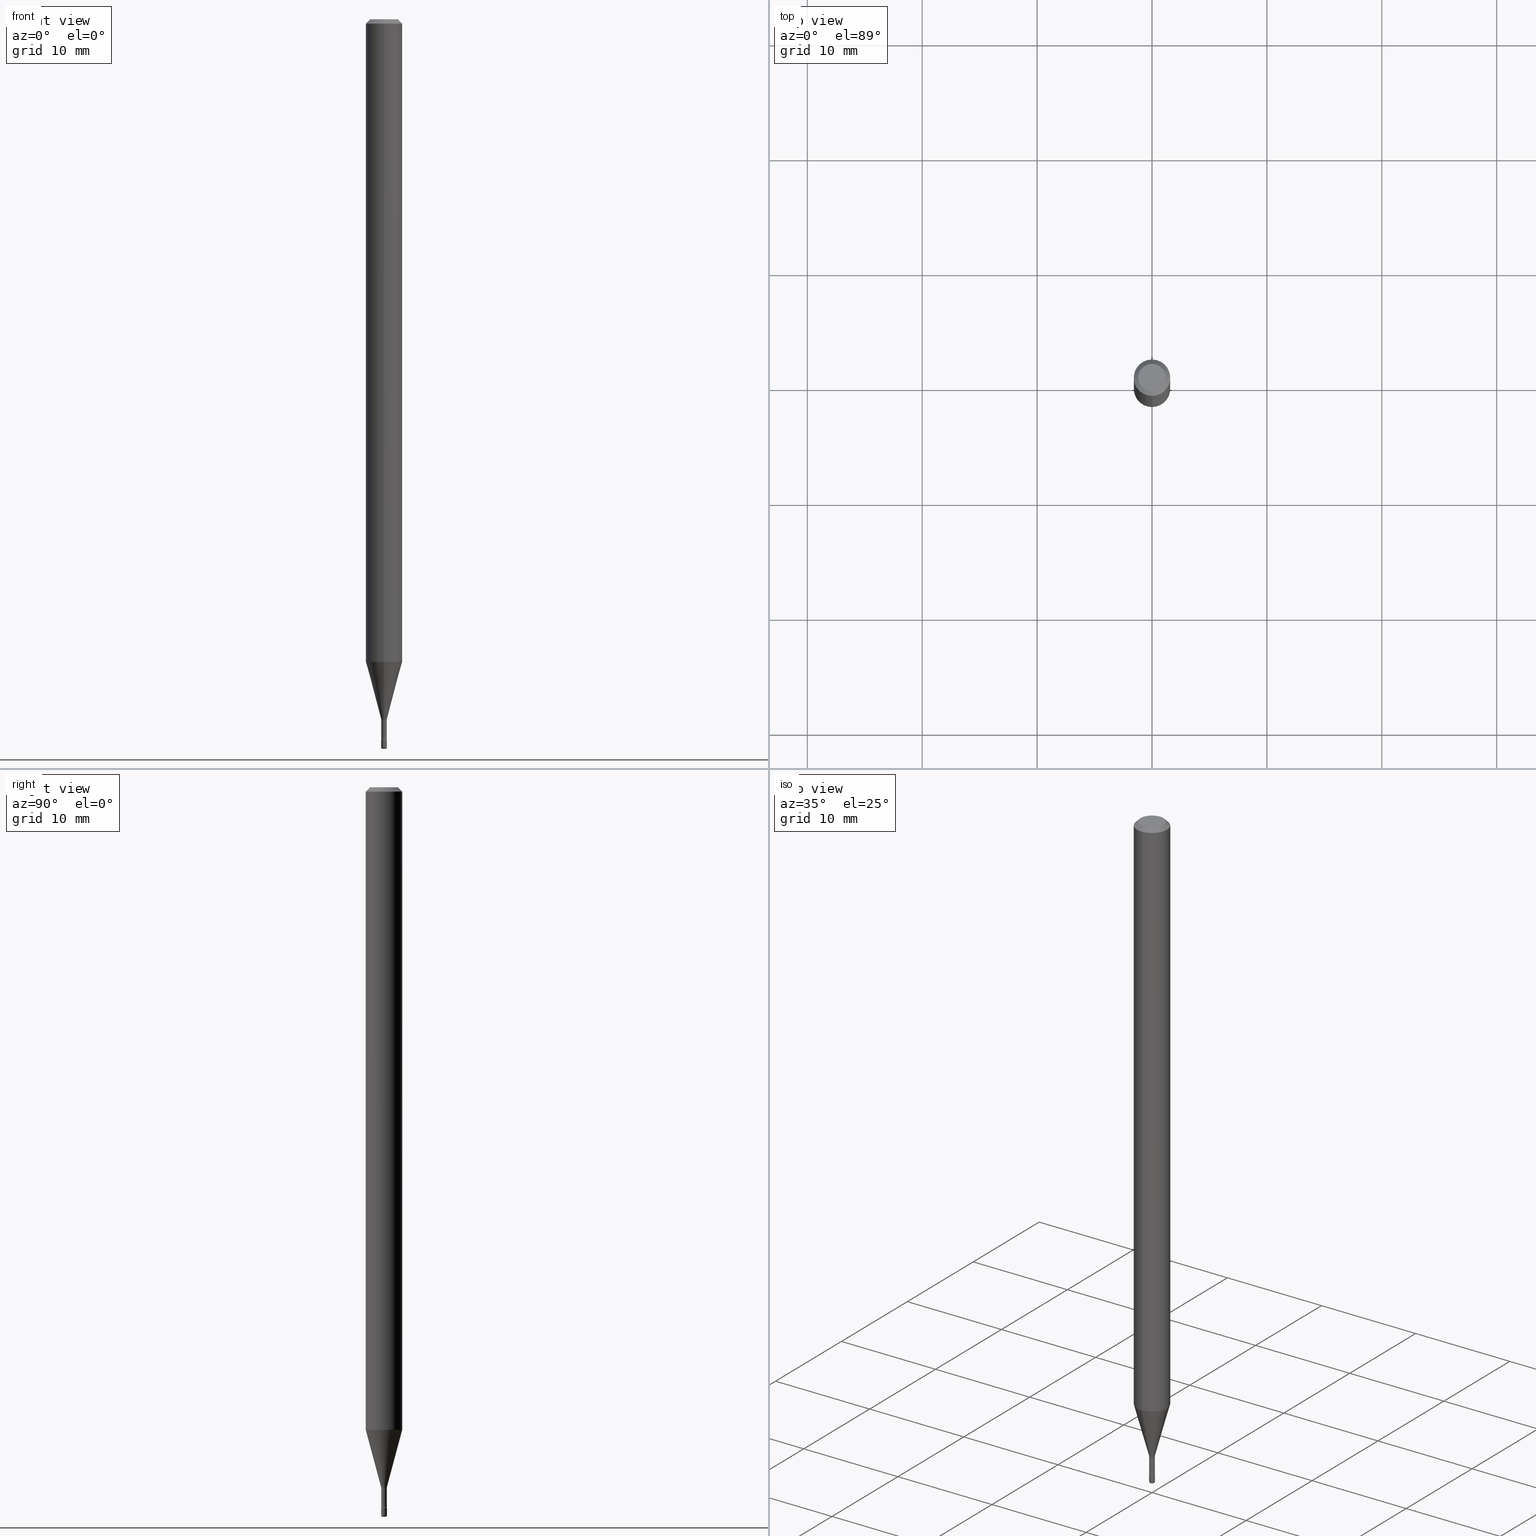
[diagram: canonical four-view strip — front | top / right | iso, engineering-drawing reading convention]
A machine part, canonical four-view strip (front | top / right | iso — engineering-drawing reading convention). The complete STEP part file that produces these views, byte-faithful:
ISO-10303-21;
HEADER;
FILE_DESCRIPTION (( 'STEP AP203' ),
    '1' );
FILE_NAME ('08785.STEP',
    '2024-03-06T20:02:25',
    ( '' ),
    ( '' ),
    'SwSTEP 2.0',
    'SolidWorks 2023',
    '' );
FILE_SCHEMA (( 'CONFIG_CONTROL_DESIGN' ));
ENDSEC;

DATA;
#1 = DIRECTION ( 'NONE',  ( -2.445504678334258331E-29, 3.491429967883887349E-15, 1.000000000000000000 ) ) ;
#2 = ORIENTED_EDGE ( 'NONE', *, *, #109, .T. ) ;
#3 = ADVANCED_FACE ( 'NONE', ( #240 ), #105, .T. ) ;
#4 = AXIS2_PLACEMENT_3D ( 'NONE', #223, #358, #309 ) ;
#5 = CC_DESIGN_SECURITY_CLASSIFICATION ( #517, ( #490 ) ) ;
#6 = DIRECTION ( 'NONE',  ( -1.000000000000000000, 6.982962677686265922E-15, -4.876176775795935793E-29 ) ) ;
#7 = FACE_OUTER_BOUND ( 'NONE', #362, .T. ) ;
#8 = PLANE ( 'NONE',  #281 ) ;
#9 = DIRECTION ( 'NONE',  ( 2.445504678334258331E-29, -3.491429967883887349E-15, -1.000000000000000000 ) ) ;
#10 = DATE_AND_TIME ( #442, #108 ) ;
#11 = CARTESIAN_POINT ( 'NONE',  ( -1.703842893354846620E-16, -0.02440000000000861965, -2.465800000000000214 ) ) ;
#12 = ORIENTED_EDGE ( 'NONE', *, *, #119, .T. ) ;
#13 = APPROVAL_ROLE ( '' ) ;
#14 = VECTOR ( 'NONE', #412, 39.37007874015748143 ) ;
#15 = LOCAL_TIME ( 15, 2, 25.00000000000000000, #235 ) ;
#16 = DIRECTION ( 'NONE',  ( 1.000000000000000000, -6.982962677686235945E-15, 0.000000000000000000 ) ) ;
#17 = EDGE_CURVE ( 'NONE', #246, #140, #280, .T. ) ;
#18 = LINE ( 'NONE', #117, #90 ) ;
#19 = CARTESIAN_POINT ( 'NONE',  ( 6.892264536879008027E-17, 0.009399999999991406549, -2.465800000000000214 ) ) ;
#20 = FACE_OUTER_BOUND ( 'NONE', #426, .T. ) ;
#21 = CARTESIAN_POINT ( 'NONE',  ( 3.840629472727447874E-16, 0.04750000000000000749, -1.929345507921889422E-16 ) ) ;
#22 = DIRECTION ( 'NONE',  ( -6.982962677686265133E-15, -1.000000000000000000, 3.491429967883887349E-15 ) ) ;
#23 = PERSON_AND_ORGANIZATION ( #226, #275 ) ;
#24 = CARTESIAN_POINT ( 'NONE',  ( 0.000000000000000000, 0.000000000000000000, 0.000000000000000000 ) ) ;
#25 = PERSON_AND_ORGANIZATION ( #226, #275 ) ;
#26 = CIRCLE ( 'NONE', #397, 0.01000000000000000021 ) ;
#27 = CIRCLE ( 'NONE', #296, 0.009399999999999998634 ) ;
#28 = CARTESIAN_POINT ( 'NONE',  ( 0.01000000000000002102, -8.781075567190510050E-15, -2.495000000000000107 ) ) ;
#29 = EDGE_LOOP ( 'NONE', ( #408, #533, #344, #569 ) ) ;
#30 = DIRECTION ( 'NONE',  ( -2.445504678334258331E-29, 3.491429967883887349E-15, 1.000000000000000000 ) ) ;
#31 = AXIS2_PLACEMENT_3D ( 'NONE', #446, #141, #395 ) ;
#32 = CC_DESIGN_APPROVAL ( #360, ( #340 ) ) ;
#33 = ORIENTED_EDGE ( 'NONE', *, *, #219, .F. ) ;
#34 = EDGE_CURVE ( 'NONE', #162, #337, #327, .T. ) ;
#35 = DIRECTION ( 'NONE',  ( 1.000000000000000000, -6.982962677686332186E-15, 0.000000000000000000 ) ) ;
#36 = MANIFOLD_SOLID_BREP ( 'Body-Move/Copy2[1]', #538 ) ;
#37 = ORIENTED_EDGE ( 'NONE', *, *, #571, .T. ) ;
#38 = DIRECTION ( 'NONE',  ( -2.445468806185136597E-29, 3.491481338843145583E-15, 1.000000000000000000 ) ) ;
#39 = ORIENTED_EDGE ( 'NONE', *, *, #76, .F. ) ;
#40 = CARTESIAN_POINT ( 'NONE',  ( 6.679101716144946940E-17, 0.009400000000000007308, 4.452539571931375103E-16 ) ) ;
#41 = ADVANCED_FACE ( 'NONE', ( #20 ), #161, .F. ) ;
#42 = AXIS2_PLACEMENT_3D ( 'NONE', #462, #287, #84 ) ;
#43 = AXIS2_PLACEMENT_3D ( 'NONE', #183, #437, #493 ) ;
#44 = VERTEX_POINT ( 'NONE', #419 ) ;
#45 = VECTOR ( 'NONE', #504, 39.37007874015748143 ) ;
#46 = CARTESIAN_POINT ( 'NONE',  ( -0.01000000000000000021, -8.596548150102098292E-15, -2.470000000000000195 ) ) ;
#47 = DIRECTION ( 'NONE',  ( 2.438088387897960049E-29, -3.491481338843145188E-15, -1.000000000000000000 ) ) ;
#48 = DIRECTION ( 'NONE',  ( -6.982962677686264344E-15, -1.000000000000000000, 0.000000000000000000 ) ) ;
#49 = FACE_OUTER_BOUND ( 'NONE', #505, .T. ) ;
#50 = VERTEX_POINT ( 'NONE', #28 ) ;
#51 = AXIS2_PLACEMENT_3D ( 'NONE', #247, #75, #283 ) ;
#52 = CARTESIAN_POINT ( 'NONE',  ( 2.572559502513620993E-16, 0.009911112605655608698, -2.398092501787273179 ) ) ;
#53 = CARTESIAN_POINT ( 'NONE',  ( 0.005000000000000000971, -8.763618160496296592E-15, -2.500000000000000000 ) ) ;
#54 = VERTEX_POINT ( 'NONE', #248 ) ;
#55 = APPROVAL_STATUS ( 'not_yet_approved' ) ;
#56 = LINE ( 'NONE', #542, #14 ) ;
#57 = CC_DESIGN_PERSON_AND_ORGANIZATION_ASSIGNMENT ( #25, #272, ( #517 ) ) ;
#58 = ORIENTED_EDGE ( 'NONE', *, *, #441, .T. ) ;
#59 = CARTESIAN_POINT ( 'NONE',  ( -3.773273898774340269E-16, -0.04750000000000000749, 1.387512961567804299E-16 ) ) ;
#60 = CLOSED_SHELL ( 'NONE', ( #178, #82, #480, #270, #273, #316, #3, #242, #81, #463, #41, #222, #233, #323 ) ) ;
#61 = COORDINATED_UNIVERSAL_TIME_OFFSET ( 5, 0, .BEHIND. ) ;
#62 = AXIS2_PLACEMENT_3D ( 'NONE', #479, #70, #16 ) ;
#63 = VERTEX_POINT ( 'NONE', #572 ) ;
#64 = TOROIDAL_SURFACE ( 'NONE', #452, 0.005000000000000000104, 0.005000000000000041737 ) ;
#65 = EDGE_CURVE ( 'NONE', #337, #50, #26, .T. ) ;
#66 = DIRECTION ( 'NONE',  ( -2.445504678334258331E-29, 3.491429967883887349E-15, 1.000000000000000000 ) ) ;
#67 = DIRECTION ( 'NONE',  ( -6.982962677686265922E-15, -1.000000000000000000, 0.000000000000000000 ) ) ;
#68 = CALENDAR_DATE ( 2024, 6, 3 ) ;
#69 = VECTOR ( 'NONE', #458, 39.37007874015748143 ) ;
#70 = DIRECTION ( 'NONE',  ( -2.445468806185136597E-29, 3.491481338843145583E-15, 1.000000000000000000 ) ) ;
#71 = CIRCLE ( 'NONE', #414, 0.01499999999999998904 ) ;
#72 = DIRECTION ( 'NONE',  ( -2.445468806185136597E-29, 3.491481338843145583E-15, 1.000000000000000000 ) ) ;
#73 = CARTESIAN_POINT ( 'NONE',  ( -0.005000000000000000104, -8.675718803625644077E-15, -2.495000000000000107 ) ) ;
#74 = DIRECTION ( 'NONE',  ( -6.982962677686265922E-15, -1.000000000000000000, 0.000000000000000000 ) ) ;
#75 = DIRECTION ( 'NONE',  ( -2.445504678334258331E-29, 3.491429967883887349E-15, 1.000000000000000000 ) ) ;
#76 = EDGE_CURVE ( 'NONE', #140, #246, #294, .T. ) ;
#77 = ORIENTED_EDGE ( 'NONE', *, *, #430, .F. ) ;
#78 = DIRECTION ( 'NONE',  ( -6.982962677686264344E-15, -1.000000000000000000, 0.000000000000000000 ) ) ;
#79 = AXIS2_PLACEMENT_3D ( 'NONE', #157, #506, #115 ) ;
#80 = ORIENTED_EDGE ( 'NONE', *, *, #208, .T. ) ;
#81 = ADVANCED_FACE ( 'NONE', ( #150 ), #423, .T. ) ;
#82 = ADVANCED_FACE ( 'NONE', ( #7 ), #319, .T. ) ;
#83 = DIMENSIONAL_EXPONENTS ( 1.000000000000000000, 0.000000000000000000, 0.000000000000000000, 0.000000000000000000, 0.000000000000000000, 0.000000000000000000, 0.000000000000000000 ) ;
#84 = DIRECTION ( 'NONE',  ( -6.982962677686265133E-15, -1.000000000000000000, 3.491429967883887349E-15 ) ) ;
#85 = ORIENTED_EDGE ( 'NONE', *, *, #334, .F. ) ;
#86 = EDGE_LOOP ( 'NONE', ( #329, #197 ) ) ;
#87 = DIRECTION ( 'NONE',  ( -2.445504678334258331E-29, 3.491429967883887349E-15, 1.000000000000000000 ) ) ;
#88 = DIRECTION ( 'NONE',  ( -2.445504678334258331E-29, 3.491429967883887349E-15, 1.000000000000000000 ) ) ;
#89 = AXIS2_PLACEMENT_3D ( 'NONE', #558, #416, #187 ) ;
#90 = VECTOR ( 'NONE', #282, 39.37007874015748143 ) ;
#91 = CARTESIAN_POINT ( 'NONE',  ( 5.864546432199082020E-29, -8.372772026497729936E-15, -2.398092501787273179 ) ) ;
#92 = TOROIDAL_SURFACE ( 'NONE', #371, 0.005000000000000000104, 0.005000000000000041737 ) ;
#93 = CARTESIAN_POINT ( 'NONE',  ( 4.440892098500625669E-16, 0.06250000000000000000, 2.598590258985031286E-16 ) ) ;
#94 = VERTEX_POINT ( 'NONE', #52 ) ;
#95 = DIRECTION ( 'NONE',  ( 1.000000000000000000, -7.105427357601001070E-15, 4.926314879429274098E-29 ) ) ;
#96 = DIRECTION ( 'NONE',  ( -2.445504678334258331E-29, 3.491429967883887349E-15, 1.000000000000000000 ) ) ;
#97 = CARTESIAN_POINT ( 'NONE',  ( 0.000000000000000000, 0.000000000000000000, 0.000000000000000000 ) ) ;
#98 = AXIS2_PLACEMENT_3D ( 'NONE', #91, #297, #203 ) ;
#99 = CC_DESIGN_APPROVAL ( #284, ( #517 ) ) ;
#100 = PERSON_AND_ORGANIZATION_ROLE ( 'design_supplier' ) ;
#101 = CARTESIAN_POINT ( 'NONE',  ( 3.316907271900976589E-16, 0.04750000000000000749, 5.964796231228628526E-17 ) ) ;
#102 = CC_DESIGN_PERSON_AND_ORGANIZATION_ASSIGNMENT ( #146, #103, ( #340 ) ) ;
#103 = PERSON_AND_ORGANIZATION_ROLE ( 'creator' ) ;
#104 = ORIENTED_EDGE ( 'NONE', *, *, #34, .F. ) ;
#105 = CONICAL_SURFACE ( 'NONE', #292, 0.009911112605663982209, 0.2617993877991502960 ) ;
#106 = CIRCLE ( 'NONE', #450, 0.005000000000000042605 ) ;
#107 = APPROVAL_ROLE ( '' ) ;
#108 = LOCAL_TIME ( 15, 2, 25.00000000000000000, #411 ) ;
#109 = EDGE_CURVE ( 'NONE', #333, #209, #176, .T. ) ;
#110 = DIRECTION ( 'NONE',  ( 2.445504678334258051E-29, -3.491429967883887349E-15, -1.000000000000000000 ) ) ;
#111 = DIRECTION ( 'NONE',  ( 1.000000000000000000, 0.000000000000000000, 0.000000000000000000 ) ) ;
#112 = CARTESIAN_POINT ( 'NONE',  ( 6.101444671431915719E-29, -8.711245940413648329E-15, -2.495000000000000107 ) ) ;
#113 = FACE_OUTER_BOUND ( 'NONE', #514, .T. ) ;
#114 = CARTESIAN_POINT ( 'NONE',  ( 6.113672015462842613E-29, -8.728703347107864943E-15, -2.500000000000000000 ) ) ;
#115 = DIRECTION ( 'NONE',  ( -6.982962677686265922E-15, -1.000000000000000000, 3.491429967883887349E-15 ) ) ;
#116 = AXIS2_PLACEMENT_3D ( 'NONE', #134, #87, #252 ) ;
#117 = CARTESIAN_POINT ( 'NONE',  ( -6.563984917025095007E-17, -0.009400000000000007308, 5.108928405893546161E-16 ) ) ;
#118 = ORIENTED_EDGE ( 'NONE', *, *, #278, .F. ) ;
#119 = EDGE_CURVE ( 'NONE', #557, #50, #106, .T. ) ;
#120 = DIRECTION ( 'NONE',  ( -1.807323732225330928E-15, -0.2588190451025182970, 0.9659258262890689783 ) ) ;
#121 = CARTESIAN_POINT ( 'NONE',  ( -6.920892941963881843E-17, -0.009911112605672353984, -2.398092501787273179 ) ) ;
#122 = ORIENTED_EDGE ( 'NONE', *, *, #386, .T. ) ;
#123 = CONICAL_SURFACE ( 'NONE', #227, 0.06250000000000000000, 0.7853981633974480570 ) ;
#124 = CIRCLE ( 'NONE', #348, 0.06250000000000000000 ) ;
#125 = ORIENTED_EDGE ( 'NONE', *, *, #109, .F. ) ;
#126 = CARTESIAN_POINT ( 'NONE',  ( 6.626985086939011636E-46, -9.456396040667753118E-32, -2.709162731770425619E-17 ) ) ;
#127 = ORIENTED_EDGE ( 'NONE', *, *, #262, .T. ) ;
#128 = CARTESIAN_POINT ( 'NONE',  ( -6.563984917019215528E-17, -0.009400000000008386022, -2.401974787463811101 ) ) ;
#129 = DIRECTION ( 'NONE',  ( -6.982962677686265922E-15, -1.000000000000000000, 3.491429967883886954E-15 ) ) ;
#130 = CARTESIAN_POINT ( 'NONE',  ( -0.01000000000000002102, -8.640191666837638248E-15, -2.495000000000000107 ) ) ;
#131 = DIRECTION ( 'NONE',  ( 1.000000000000000000, -6.982962677686265922E-15, 4.876176775795935793E-29 ) ) ;
#132 = CARTESIAN_POINT ( 'NONE',  ( -4.364351673553912750E-16, -0.06250000000000005551, -0.01499999999999981036 ) ) ;
#133 = AXIS2_PLACEMENT_3D ( 'NONE', #260, #1, #48 ) ;
#134 = CARTESIAN_POINT ( 'NONE',  ( 6.040396555485618656E-29, -8.623832020673202836E-15, -2.470000000000000195 ) ) ;
#135 = EDGE_CURVE ( 'NONE', #209, #333, #460, .T. ) ;
#136 = DIRECTION ( 'NONE',  ( -2.445504678334258612E-29, 3.491429967883887349E-15, 1.000000000000000000 ) ) ;
#137 = CARTESIAN_POINT ( 'NONE',  ( -1.703842893354861412E-16, -0.02440000000000839067, -2.401974787463811101 ) ) ;
#138 = DIRECTION ( 'NONE',  ( 0.000000000000000000, 0.000000000000000000, 1.000000000000000000 ) ) ;
#139 = CYLINDRICAL_SURFACE ( 'NONE', #413, 0.01000000000000000021 ) ;
#140 = VERTEX_POINT ( 'NONE', #59 ) ;
#141 = DIRECTION ( 'NONE',  ( -2.445504678334258331E-29, 3.491429967883887349E-15, 1.000000000000000000 ) ) ;
#142 = CARTESIAN_POINT ( 'NONE',  ( 5.874040579983686119E-29, -8.386326755052680655E-15, -2.401974787463811101 ) ) ;
#143 = CYLINDRICAL_SURFACE ( 'NONE', #527, 0.06250000000000000000 ) ;
#144 = EDGE_CURVE ( 'NONE', #557, #162, #192, .T. ) ;
#145 = AXIS2_PLACEMENT_3D ( 'NONE', #301, #88, #484 ) ;
#146 = PERSON_AND_ORGANIZATION ( #226, #275 ) ;
#147 = ORIENTED_EDGE ( 'NONE', *, *, #208, .F. ) ;
#148 = EDGE_LOOP ( 'NONE', ( #525, #561, #311, #369 ) ) ;
#149 = EDGE_CURVE ( 'NONE', #342, #63, #387, .T. ) ;
#150 = FACE_OUTER_BOUND ( 'NONE', #29, .T. ) ;
#151 = COORDINATED_UNIVERSAL_TIME_OFFSET ( 5, 0, .BEHIND. ) ;
#152 = DIRECTION ( 'NONE',  ( -6.982962677686265922E-15, -1.000000000000000000, 3.491429967883886954E-15 ) ) ;
#153 = CARTESIAN_POINT ( 'NONE',  ( -1.169113584055446105E-44, 1.669184350826100908E-30, 4.780733988912460139E-16 ) ) ;
#154 = CARTESIAN_POINT ( 'NONE',  ( -6.563984917019071315E-17, -0.009400000000008625414, -2.465800000000000214 ) ) ;
#155 = AXIS2_PLACEMENT_3D ( 'NONE', #137, #350, #534 ) ;
#156 = DIRECTION ( 'NONE',  ( 1.000000000000000000, -6.982962677686265922E-15, 4.876176775795935793E-29 ) ) ;
#157 = CARTESIAN_POINT ( 'NONE',  ( 5.873954415985923093E-29, -8.386450146801627753E-15, -2.401974787463811101 ) ) ;
#158 = EDGE_CURVE ( 'NONE', #285, #209, #195, .T. ) ;
#159 = EDGE_CURVE ( 'NONE', #190, #175, #540, .T. ) ;
#160 = DIRECTION ( 'NONE',  ( -2.445468806185136597E-29, 3.491481338843145583E-15, 1.000000000000000000 ) ) ;
#161 = PLANE ( 'NONE',  #89 ) ;
#162 = VERTEX_POINT ( 'NONE', #471 ) ;
#163 = FACE_OUTER_BOUND ( 'NONE', #436, .T. ) ;
#164 = CIRCLE ( 'NONE', #556, 0.01000000000000000021 ) ;
#165 = EDGE_CURVE ( 'NONE', #50, #337, #204, .T. ) ;
#166 = EDGE_LOOP ( 'NONE', ( #562, #443, #127, #58 ) ) ;
#167 = ORIENTED_EDGE ( 'NONE', *, *, #425, .T. ) ;
#168 = CARTESIAN_POINT ( 'NONE',  ( 1.733724275255247796E-16, 0.02439999999999140079, -2.465800000000000214 ) ) ;
#169 = ORIENTED_EDGE ( 'NONE', *, *, #135, .T. ) ;
#170 = DIRECTION ( 'NONE',  ( -2.445468806185136597E-29, 3.491481338843145583E-15, 1.000000000000000000 ) ) ;
#171 = CIRCLE ( 'NONE', #220, 0.009400000000000015982 ) ;
#172 = ORIENTED_EDGE ( 'NONE', *, *, #510, .T. ) ;
#173 = DIRECTION ( 'NONE',  ( -2.445504678334258331E-29, 3.491429967883887349E-15, 1.000000000000000000 ) ) ;
#174 = EDGE_CURVE ( 'NONE', #209, #342, #56, .T. ) ;
#175 = VERTEX_POINT ( 'NONE', #19 ) ;
#176 = CIRCLE ( 'NONE', #4, 0.06250000000000000000 ) ;
#177 = CC_DESIGN_APPROVAL ( #472, ( #490 ) ) ;
#178 = ADVANCED_FACE ( 'NONE', ( #186 ), #328, .F. ) ;
#179 = CARTESIAN_POINT ( 'NONE',  ( 6.040307951277287977E-29, -8.623958906942569995E-15, -2.470000000000000195 ) ) ;
#180 = ORIENTED_EDGE ( 'NONE', *, *, #432, .T. ) ;
#181 = DIRECTION ( 'NONE',  ( -6.982962677686266711E-15, -1.000000000000000000, 3.491481338843145583E-15 ) ) ;
#182 = DIRECTION ( 'NONE',  ( 1.000000000000000000, -6.982962677686265922E-15, 4.876176775795935793E-29 ) ) ;
#183 = CARTESIAN_POINT ( 'NONE',  ( -1.169113584055446105E-44, 1.669184350826100908E-30, 4.780733988912460139E-16 ) ) ;
#184 = AXIS2_PLACEMENT_3D ( 'NONE', #279, #236, #503 ) ;
#185 = ORIENTED_EDGE ( 'NONE', *, *, #546, .T. ) ;
#186 = FACE_OUTER_BOUND ( 'NONE', #492, .T. ) ;
#187 = DIRECTION ( 'NONE',  ( -6.982962677686265922E-15, -1.000000000000000000, 3.491429967883887349E-15 ) ) ;
#188 = CYLINDRICAL_SURFACE ( 'NONE', #256, 0.01000000000000000021 ) ;
#189 = PERSON_AND_ORGANIZATION_ROLE ( 'creator' ) ;
#190 = VERTEX_POINT ( 'NONE', #154 ) ;
#191 = DIRECTION ( 'NONE',  ( 1.000000000000000000, -6.982962677686235945E-15, 0.000000000000000000 ) ) ;
#192 = CIRCLE ( 'NONE', #354, 0.005000000000000000971 ) ;
#193 = DATE_TIME_ROLE ( 'classification_date' ) ;
#194 = VECTOR ( 'NONE', #136, 39.37007874015748143 ) ;
#195 = LINE ( 'NONE', #449, #307 ) ;
#196 = LINE ( 'NONE', #325, #45 ) ;
#197 = ORIENTED_EDGE ( 'NONE', *, *, #278, .T. ) ;
#198 = ADVANCED_FACE ( 'NONE', ( #553 ), #188, .T. ) ;
#199 = DIRECTION ( 'NONE',  ( -2.445504678334258331E-29, 3.491429967883887349E-15, 1.000000000000000000 ) ) ;
#200 = PRODUCT_DEFINITION_SHAPE ( 'NONE', 'NONE',  #340 ) ;
#201 = EDGE_CURVE ( 'NONE', #246, #63, #551, .T. ) ;
#202 = ORIENTED_EDGE ( 'NONE', *, *, #289, .T. ) ;
#203 = DIRECTION ( 'NONE',  ( -6.982962677686264344E-15, -1.000000000000000000, 0.000000000000000000 ) ) ;
#204 = CIRCLE ( 'NONE', #555, 0.01000000000000000021 ) ;
#205 = AXIS2_PLACEMENT_3D ( 'NONE', #530, #138, #111 ) ;
#206 = DIRECTION ( 'NONE',  ( -2.445504678334258331E-29, 3.491429967883887349E-15, 1.000000000000000000 ) ) ;
#207 = VECTOR ( 'NONE', #560, 39.37007874015748143 ) ;
#208 = EDGE_CURVE ( 'NONE', #162, #557, #338, .T. ) ;
#209 = VERTEX_POINT ( 'NONE', #405 ) ;
#210 = LINE ( 'NONE', #519, #207 ) ;
#211 = DIRECTION ( 'NONE',  ( 1.000000000000000000, -6.982962677686332186E-15, 0.000000000000000000 ) ) ;
#212 = ORIENTED_EDGE ( 'NONE', *, *, #513, .T. ) ;
#213 = DIRECTION ( 'NONE',  ( -6.982962677686265922E-15, -1.000000000000000000, 3.483106191921935554E-15 ) ) ;
#214 = VECTOR ( 'NONE', #259, 39.37007874015748143 ) ;
#215 = ORIENTED_EDGE ( 'NONE', *, *, #528, .F. ) ;
#216 =( NAMED_UNIT ( * ) PLANE_ANGLE_UNIT ( ) SI_UNIT ( $, .RADIAN. ) );
#217 = DIRECTION ( 'NONE',  ( -6.982962677686265922E-15, -1.000000000000000000, 0.000000000000000000 ) ) ;
#218 = APPLICATION_PROTOCOL_DEFINITION ( 'international standard', 'config_control_design', 1994, #496 ) ;
#219 = EDGE_CURVE ( 'NONE', #190, #388, #18, .T. ) ;
#220 = AXIS2_PLACEMENT_3D ( 'NONE', #507, #30, #74 ) ;
#221 = APPROVAL_PERSON_ORGANIZATION ( #230, #360, #13 ) ;
#222 = ADVANCED_FACE ( 'NONE', ( #497 ), #398, .F. ) ;
#223 = CARTESIAN_POINT ( 'NONE',  ( 5.384580924617639172E-29, -7.687528619864014535E-15, -2.201828102118093433 ) ) ;
#224 =( LENGTH_UNIT ( ) NAMED_UNIT ( * ) SI_UNIT ( $, .METRE. ) );
#225 = SHAPE_DEFINITION_REPRESENTATION ( #200, #465 ) ;
#226 = PERSON ( 'UNSPECIFIED', 'UNSPECIFIED', 'UNSPECIFIED', ('UNSPECIFIED'), ('UNSPECIFIED'), ('UNSPECIFIED') ) ;
#227 = AXIS2_PLACEMENT_3D ( 'NONE', #392, #9, #351 ) ;
#228 = CARTESIAN_POINT ( 'NONE',  ( 6.113672015462842613E-29, -8.728703347107864943E-15, -2.500000000000000000 ) ) ;
#229 = AXIS2_PLACEMENT_3D ( 'NONE', #101, #110, #478 ) ;
#230 = PERSON_AND_ORGANIZATION ( #226, #275 ) ;
#231 = ORIENTED_EDGE ( 'NONE', *, *, #201, .F. ) ;
#232 = CARTESIAN_POINT ( 'NONE',  ( 4.440892098501162587E-16, 0.06249999999999230477, -2.201828102118093877 ) ) ;
#233 = ADVANCED_FACE ( 'NONE', ( #113 ), #239, .T. ) ;
#234 = MECHANICAL_CONTEXT ( 'NONE', #496, 'mechanical' ) ;
#235 = COORDINATED_UNIVERSAL_TIME_OFFSET ( 5, 0, .BEHIND. ) ;
#236 = DIRECTION ( 'NONE',  ( -2.445504678334258331E-29, 3.491429967883887349E-15, 1.000000000000000000 ) ) ;
#237 = EDGE_CURVE ( 'NONE', #285, #388, #295, .T. ) ;
#238 = CIRCLE ( 'NONE', #62, 0.01000000000000000021 ) ;
#239 = CYLINDRICAL_SURFACE ( 'NONE', #274, 0.009400000000000007308 ) ;
#240 = FACE_OUTER_BOUND ( 'NONE', #322, .T. ) ;
#241 = ORIENTED_EDGE ( 'NONE', *, *, #237, .F. ) ;
#242 = ADVANCED_FACE ( 'NONE', ( #445 ), #399, .T. ) ;
#243 = AXIS2_PLACEMENT_3D ( 'NONE', #331, #206, #78 ) ;
#244 = CARTESIAN_POINT ( 'NONE',  ( 6.101444671431915719E-29, -8.711245940413648329E-15, -2.495000000000000107 ) ) ;
#245 = APPROVAL_PERSON_ORGANIZATION ( #364, #284, #107 ) ;
#246 = VERTEX_POINT ( 'NONE', #21 ) ;
#247 = CARTESIAN_POINT ( 'NONE',  ( 6.030125435836615082E-29, -8.609168014808090444E-15, -2.465800000000000214 ) ) ;
#248 = CARTESIAN_POINT ( 'NONE',  ( 7.105427357607038025E-17, 0.009999999999991373428, -2.470000000000000195 ) ) ;
#249 = EDGE_LOOP ( 'NONE', ( #258, #147 ) ) ;
#250 = FACE_OUTER_BOUND ( 'NONE', #402, .T. ) ;
#251 = ORIENTED_EDGE ( 'NONE', *, *, #158, .F. ) ;
#252 = DIRECTION ( 'NONE',  ( -6.982962677686265922E-15, -1.000000000000000000, 0.000000000000000000 ) ) ;
#253 = CC_DESIGN_PERSON_AND_ORGANIZATION_ASSIGNMENT ( #548, #100, ( #490 ) ) ;
#254 = ADVANCED_FACE ( 'NONE', ( #531 ), #139, .T. ) ;
#255 = CARTESIAN_POINT ( 'NONE',  ( -0.01000000000000000021, 7.105427357601002007E-17, -4.918935090254906272E-31 ) ) ;
#256 = AXIS2_PLACEMENT_3D ( 'NONE', #24, #160, #156 ) ;
#257 = AXIS2_PLACEMENT_3D ( 'NONE', #476, #47, #6 ) ;
#258 = ORIENTED_EDGE ( 'NONE', *, *, #144, .F. ) ;
#259 = DIRECTION ( 'NONE',  ( -2.445504678334258612E-29, 3.491429967883887349E-15, 1.000000000000000000 ) ) ;
#260 = CARTESIAN_POINT ( 'NONE',  ( 5.864546432199082020E-29, -8.372772026497729936E-15, -2.398092501787273179 ) ) ;
#261 = ORIENTED_EDGE ( 'NONE', *, *, #403, .F. ) ;
#262 = EDGE_CURVE ( 'NONE', #190, #347, #266, .T. ) ;
#263 = FACE_OUTER_BOUND ( 'NONE', #86, .T. ) ;
#264 = DIRECTION ( 'NONE',  ( -2.445468806185136597E-29, 3.491481338843145583E-15, 1.000000000000000000 ) ) ;
#265 = AXIS2_PLACEMENT_3D ( 'NONE', #73, #512, #324 ) ;
#266 = CIRCLE ( 'NONE', #481, 0.01499999999999999771 ) ;
#267 = AXIS2_PLACEMENT_3D ( 'NONE', #299, #95, #379 ) ;
#268 = DATE_AND_TIME ( #487, #339 ) ;
#269 = ORIENTED_EDGE ( 'NONE', *, *, #394, .T. ) ;
#270 = ADVANCED_FACE ( 'NONE', ( #49 ), #123, .T. ) ;
#271 = CARTESIAN_POINT ( 'NONE',  ( 0.005000000000000000104, -8.746160753802078401E-15, -2.495000000000000107 ) ) ;
#272 = PERSON_AND_ORGANIZATION_ROLE ( 'classification_officer' ) ;
#273 = ADVANCED_FACE ( 'NONE', ( #536 ), #143, .T. ) ;
#274 = AXIS2_PLACEMENT_3D ( 'NONE', #153, #66, #418 ) ;
#275 = ORGANIZATION ( 'UNSPECIFIED', 'UNSPECIFIED', '' ) ;
#276 = DATE_TIME_ROLE ( 'creation_date' ) ;
#277 = DIRECTION ( 'NONE',  ( 1.000000000000000000, -6.982962677686302998E-15, 4.883557194083125793E-29 ) ) ;
#278 = EDGE_CURVE ( 'NONE', #516, #440, #238, .T. ) ;
#279 = CARTESIAN_POINT ( 'NONE',  ( 6.030036982291310238E-29, -8.609294685319429365E-15, -2.465800000000000214 ) ) ;
#280 = CIRCLE ( 'NONE', #42, 0.04750000000000000749 ) ;
#281 = AXIS2_PLACEMENT_3D ( 'NONE', #179, #438, #131 ) ;
#282 = DIRECTION ( 'NONE',  ( -2.445504678334258612E-29, 3.491429967883887349E-15, 1.000000000000000000 ) ) ;
#283 = DIRECTION ( 'NONE',  ( -6.982962677686265922E-15, -1.000000000000000000, 0.000000000000000000 ) ) ;
#284 = APPROVAL ( #499, 'UNSPECIFIED' ) ;
#285 = VERTEX_POINT ( 'NONE', #121 ) ;
#286 = CIRCLE ( 'NONE', #363, 0.01000000000000000021 ) ;
#287 = DIRECTION ( 'NONE',  ( -2.445504678334258331E-29, 3.491429967883887349E-15, 1.000000000000000000 ) ) ;
#288 = ORIENTED_EDGE ( 'NONE', *, *, #528, .T. ) ;
#289 = EDGE_CURVE ( 'NONE', #175, #190, #171, .T. ) ;
#290 = EDGE_LOOP ( 'NONE', ( #215, #473, #374, #172 ) ) ;
#291 = LINE ( 'NONE', #93, #194 ) ;
#292 = AXIS2_PLACEMENT_3D ( 'NONE', #359, #199, #332 ) ;
#293 = PLANE ( 'NONE',  #257 ) ;
#294 = CIRCLE ( 'NONE', #370, 0.04750000000000000749 ) ;
#295 = CIRCLE ( 'NONE', #155, 0.01500000000000002373 ) ;
#296 = AXIS2_PLACEMENT_3D ( 'NONE', #142, #173, #383 ) ;
#297 = DIRECTION ( 'NONE',  ( -2.445504678334258331E-29, 3.491429967883887349E-15, 1.000000000000000000 ) ) ;
#298 = FACE_OUTER_BOUND ( 'NONE', #148, .T. ) ;
#299 = CARTESIAN_POINT ( 'NONE',  ( 1.733724275255231772E-16, 0.02439999999999161243, -2.401974787463811101 ) ) ;
#300 = CC_DESIGN_PERSON_AND_ORGANIZATION_ASSIGNMENT ( #315, #407, ( #470 ) ) ;
#301 = CARTESIAN_POINT ( 'NONE',  ( 6.030036982291310238E-29, -8.609294685319429365E-15, -2.465800000000000214 ) ) ;
#302 = ORIENTED_EDGE ( 'NONE', *, *, #65, .F. ) ;
#303 = DATE_AND_TIME ( #539, #380 ) ;
#304 = ORIENTED_EDGE ( 'NONE', *, *, #518, .F. ) ;
#305 = ORIENTED_EDGE ( 'NONE', *, *, #149, .T. ) ;
#306 = LINE ( 'NONE', #568, #474 ) ;
#307 = VECTOR ( 'NONE', #120, 39.37007874015748143 ) ;
#308 = AXIS2_PLACEMENT_3D ( 'NONE', #382, #431, #217 ) ;
#309 = DIRECTION ( 'NONE',  ( -6.982962677686265922E-15, -1.000000000000000000, 4.370956789862821150E-15 ) ) ;
#310 = CALENDAR_DATE ( 2024, 6, 3 ) ;
#311 = ORIENTED_EDGE ( 'NONE', *, *, #165, .F. ) ;
#312 = DIRECTION ( 'NONE',  ( 6.982962677686265922E-15, 1.000000000000000000, -3.483106191921935554E-15 ) ) ;
#313 = SECURITY_CLASSIFICATION_LEVEL ( 'unclassified' ) ;
#314 = ORIENTED_EDGE ( 'NONE', *, *, #262, .F. ) ;
#315 = PERSON_AND_ORGANIZATION ( #226, #275 ) ;
#316 = ADVANCED_FACE ( 'NONE', ( #163 ), #501, .T. ) ;
#317 = CARTESIAN_POINT ( 'NONE',  ( 5.873954415985923093E-29, -8.386450146801627753E-15, -2.401974787463811101 ) ) ;
#318 = TOROIDAL_SURFACE ( 'NONE', #79, 0.02440000000000000155, 0.01500000000000002547 ) ;
#319 = CYLINDRICAL_SURFACE ( 'NONE', #43, 0.009400000000000007308 ) ;
#320 = APPROVAL_DATE_TIME ( #268, #284 ) ;
#321 = DIRECTION ( 'NONE',  ( -2.445468806185136597E-29, 3.491481338843145583E-15, 1.000000000000000000 ) ) ;
#322 = EDGE_LOOP ( 'NONE', ( #349, #37, #537, #125 ) ) ;
#323 = ADVANCED_FACE ( 'NONE', ( #495 ), #318, .F. ) ;
#324 = DIRECTION ( 'NONE',  ( -1.000000000000000000, 7.105427357601060234E-15, 0.000000000000000000 ) ) ;
#325 = CARTESIAN_POINT ( 'NONE',  ( -4.287811248607203282E-16, -0.06250000000000005551, -0.01499999999999981036 ) ) ;
#326 = CARTESIAN_POINT ( 'NONE',  ( 4.364351673553919652E-16, 0.06249999999999995143, -0.01500000000000024578 ) ) ;
#327 = CIRCLE ( 'NONE', #265, 0.005000000000000042605 ) ;
#328 = TOROIDAL_SURFACE ( 'NONE', #429, 0.02440000000000000155, 0.01500000000000002547 ) ;
#329 = ORIENTED_EDGE ( 'NONE', *, *, #334, .T. ) ;
#330 =( GEOMETRIC_REPRESENTATION_CONTEXT ( 3 ) GLOBAL_UNCERTAINTY_ASSIGNED_CONTEXT ( ( #346 ) ) GLOBAL_UNIT_ASSIGNED_CONTEXT ( ( #391, #216, #522 ) ) REPRESENTATION_CONTEXT ( 'NONE', 'WORKASPACE' ) );
#331 = CARTESIAN_POINT ( 'NONE',  ( 5.864546432199082020E-29, -8.372772026497729936E-15, -2.398092501787273179 ) ) ;
#332 = DIRECTION ( 'NONE',  ( -6.982962677686264344E-15, -1.000000000000000000, 0.000000000000000000 ) ) ;
#333 = VERTEX_POINT ( 'NONE', #232 ) ;
#334 = EDGE_CURVE ( 'NONE', #440, #516, #286, .T. ) ;
#335 = APPLICATION_CONTEXT ( 'configuration controlled 3d designs of mechanical parts and assemblies' ) ;
#336 = DIRECTION ( 'NONE',  ( 1.000000000000000000, -7.105427357601001070E-15, 4.926314879429274098E-29 ) ) ;
#337 = VERTEX_POINT ( 'NONE', #130 ) ;
#338 = CIRCLE ( 'NONE', #378, 0.005000000000000000971 ) ;
#339 = LOCAL_TIME ( 15, 2, 25.00000000000000000, #552 ) ;
#340 = PRODUCT_DEFINITION ( 'UNKNOWN', '', #490, #373 ) ;
#341 = ORIENTED_EDGE ( 'NONE', *, *, #17, .T. ) ;
#342 = VERTEX_POINT ( 'NONE', #132 ) ;
#343 = CARTESIAN_POINT ( 'NONE',  ( -1.169113584055446105E-44, 1.669184350826100908E-30, 4.780733988912460139E-16 ) ) ;
#344 = ORIENTED_EDGE ( 'NONE', *, *, #201, .T. ) ;
#345 = FACE_OUTER_BOUND ( 'NONE', #511, .T. ) ;
#346 = UNCERTAINTY_MEASURE_WITH_UNIT (LENGTH_MEASURE( 1.000000000000000082E-05 ), #391, 'distance_accuracy_value', 'NONE');
#347 = VERTEX_POINT ( 'NONE', #466 ) ;
#348 = AXIS2_PLACEMENT_3D ( 'NONE', #526, #96, #213 ) ;
#349 = ORIENTED_EDGE ( 'NONE', *, *, #422, .F. ) ;
#350 = DIRECTION ( 'NONE',  ( -1.000000000000000000, 6.982962677686265922E-15, -4.883557194083112340E-29 ) ) ;
#351 = DIRECTION ( 'NONE',  ( 6.982962677686265922E-15, 1.000000000000000000, -3.483106191921935554E-15 ) ) ;
#352 = ORIENTED_EDGE ( 'NONE', *, *, #289, .F. ) ;
#353 = CC_DESIGN_PERSON_AND_ORGANIZATION_ASSIGNMENT ( #541, #189, ( #490 ) ) ;
#354 = AXIS2_PLACEMENT_3D ( 'NONE', #228, #401, #547 ) ;
#355 = LOCAL_TIME ( 15, 2, 25.00000000000000000, #151 ) ;
#356 = DATE_AND_TIME ( #68, #355 ) ;
#357 = CARTESIAN_POINT ( 'NONE',  ( -1.169113584055446105E-44, 1.669184350826100908E-30, 4.780733988912460139E-16 ) ) ;
#358 = DIRECTION ( 'NONE',  ( -2.445504678334258331E-29, 3.491429967883887349E-15, 1.000000000000000000 ) ) ;
#359 = CARTESIAN_POINT ( 'NONE',  ( 5.864546432199082020E-29, -8.372772026497729936E-15, -2.398092501787273179 ) ) ;
#360 = APPROVAL ( #55, 'UNSPECIFIED' ) ;
#361 = APPLICATION_PROTOCOL_DEFINITION ( 'international standard', 'config_control_design', 1994, #335 ) ;
#362 = EDGE_LOOP ( 'NONE', ( #381, #122, #477, #33 ) ) ;
#363 = AXIS2_PLACEMENT_3D ( 'NONE', #464, #409, #191 ) ;
#364 = PERSON_AND_ORGANIZATION ( #226, #275 ) ;
#365 = DIRECTION ( 'NONE',  ( -2.445468806185136877E-29, 3.491481338843145188E-15, 1.000000000000000000 ) ) ;
#366 = ORIENTED_EDGE ( 'NONE', *, *, #403, .T. ) ;
#367 = EDGE_CURVE ( 'NONE', #285, #94, #439, .T. ) ;
#368 = AXIS2_PLACEMENT_3D ( 'NONE', #390, #393, #312 ) ;
#369 = ORIENTED_EDGE ( 'NONE', *, *, #119, .F. ) ;
#370 = AXIS2_PLACEMENT_3D ( 'NONE', #126, #406, #22 ) ;
#371 = AXIS2_PLACEMENT_3D ( 'NONE', #434, #529, #427 ) ;
#372 = ORIENTED_EDGE ( 'NONE', *, *, #174, .F. ) ;
#373 = DESIGN_CONTEXT ( 'detailed design', #335, 'design' ) ;
#374 = ORIENTED_EDGE ( 'NONE', *, *, #237, .T. ) ;
#375 = CARTESIAN_POINT ( 'NONE',  ( 0.01000000000000000021, -8.693788533719433294E-15, -2.470000000000000195 ) ) ;
#376 = DIRECTION ( 'NONE',  ( 7.105427357601001859E-15, 1.000000000000000000, 0.000000000000000000 ) ) ;
#377 = ORIENTED_EDGE ( 'NONE', *, *, #174, .T. ) ;
#378 = AXIS2_PLACEMENT_3D ( 'NONE', #114, #321, #509 ) ;
#379 = DIRECTION ( 'NONE',  ( 7.105427357601003436E-15, 1.000000000000000000, 0.000000000000000000 ) ) ;
#380 = LOCAL_TIME ( 15, 2, 25.00000000000000000, #61 ) ;
#381 = ORIENTED_EDGE ( 'NONE', *, *, #159, .T. ) ;
#382 = CARTESIAN_POINT ( 'NONE',  ( 5.874040579983686119E-29, -8.386326755052680655E-15, -2.401974787463811101 ) ) ;
#383 = DIRECTION ( 'NONE',  ( -6.982962677686265922E-15, -1.000000000000000000, 0.000000000000000000 ) ) ;
#384 = LINE ( 'NONE', #255, #461 ) ;
#385 = DIRECTION ( 'NONE',  ( -1.000000000000000000, 6.982962677686265922E-15, -4.883557194083112340E-29 ) ) ;
#386 = EDGE_CURVE ( 'NONE', #175, #44, #485, .T. ) ;
#387 = CIRCLE ( 'NONE', #508, 0.06250000000000000000 ) ;
#388 = VERTEX_POINT ( 'NONE', #128 ) ;
#389 = CIRCLE ( 'NONE', #133, 0.009911112605663982209 ) ;
#390 = CARTESIAN_POINT ( 'NONE',  ( 3.668257017501394101E-31, -5.237144951825841500E-17, -0.01500000000000002720 ) ) ;
#391 =( CONVERSION_BASED_UNIT ( 'INCH', #482 ) LENGTH_UNIT ( ) NAMED_UNIT ( #83 ) );
#392 = CARTESIAN_POINT ( 'NONE',  ( 3.668257017501394101E-31, -5.237144951825841500E-17, -0.01500000000000002720 ) ) ;
#393 = DIRECTION ( 'NONE',  ( 2.445504678334258331E-29, -3.491429967883887349E-15, -1.000000000000000000 ) ) ;
#394 = EDGE_CURVE ( 'NONE', #54, #347, #488, .T. ) ;
#395 = DIRECTION ( 'NONE',  ( -6.982962677686265922E-15, -1.000000000000000000, 4.370956789862821150E-15 ) ) ;
#396 = ORIENTED_EDGE ( 'NONE', *, *, #546, .F. ) ;
#397 = AXIS2_PLACEMENT_3D ( 'NONE', #564, #38, #211 ) ;
#398 = TOROIDAL_SURFACE ( 'NONE', #184, 0.02440000000000000849, 0.01499999999999999424 ) ;
#399 = CYLINDRICAL_SURFACE ( 'NONE', #550, 0.06250000000000000000 ) ;
#400 = APPROVAL_PERSON_ORGANIZATION ( #23, #472, #491 ) ;
#401 = DIRECTION ( 'NONE',  ( -2.445468806185136597E-29, 3.491481338843145583E-15, 1.000000000000000000 ) ) ;
#402 = EDGE_LOOP ( 'NONE', ( #352, #167, #269, #314 ) ) ;
#403 = EDGE_CURVE ( 'NONE', #44, #388, #563, .T. ) ;
#404 = MANIFOLD_SOLID_BREP ( 'Body-Move/Copy2[2]', #60 ) ;
#405 = CARTESIAN_POINT ( 'NONE',  ( -4.364351673553378297E-16, -0.06250000000000768829, -2.201828102118092989 ) ) ;
#406 = DIRECTION ( 'NONE',  ( -2.445504678334258331E-29, 3.491429967883887349E-15, 1.000000000000000000 ) ) ;
#407 = PERSON_AND_ORGANIZATION_ROLE ( 'design_owner' ) ;
#408 = ORIENTED_EDGE ( 'NONE', *, *, #432, .F. ) ;
#409 = DIRECTION ( 'NONE',  ( -2.445468806185136597E-29, 3.491481338843145583E-15, 1.000000000000000000 ) ) ;
#410 = DIRECTION ( 'NONE',  ( -2.445504678334258331E-29, 3.491429967883887349E-15, 1.000000000000000000 ) ) ;
#411 = COORDINATED_UNIVERSAL_TIME_OFFSET ( 5, 0, .BEHIND. ) ;
#412 = DIRECTION ( 'NONE',  ( -2.445504678334258612E-29, 3.491429967883887349E-15, 1.000000000000000000 ) ) ;
#413 = AXIS2_PLACEMENT_3D ( 'NONE', #97, #264, #182 ) ;
#414 = AXIS2_PLACEMENT_3D ( 'NONE', #168, #336, #376 ) ;
#415 = ADVANCED_FACE ( 'NONE', ( #298 ), #64, .T. ) ;
#416 = DIRECTION ( 'NONE',  ( -2.445504678334258051E-29, 3.491429967883887349E-15, 1.000000000000000000 ) ) ;
#417 = PRODUCT_RELATED_PRODUCT_CATEGORY ( 'detail', '', ( #470 ) ) ;
#418 = DIRECTION ( 'NONE',  ( -6.982962677686265922E-15, -1.000000000000000000, 3.491429967883884588E-15 ) ) ;
#419 = CARTESIAN_POINT ( 'NONE',  ( 6.679101716150975563E-17, 0.009399999999991612981, -2.401974787463811101 ) ) ;
#420 = ORIENTED_EDGE ( 'NONE', *, *, #430, .T. ) ;
#421 = CARTESIAN_POINT ( 'NONE',  ( 6.040396555485618656E-29, -8.623832020673202836E-15, -2.470000000000000195 ) ) ;
#422 = EDGE_CURVE ( 'NONE', #94, #333, #210, .T. ) ;
#423 = CONICAL_SURFACE ( 'NONE', #368, 0.06250000000000000000, 0.7853981633974480570 ) ;
#424 = ORIENTED_EDGE ( 'NONE', *, *, #513, .F. ) ;
#425 = EDGE_CURVE ( 'NONE', #175, #54, #71, .T. ) ;
#426 = EDGE_LOOP ( 'NONE', ( #489, #444 ) ) ;
#427 = DIRECTION ( 'NONE',  ( 1.000000000000000000, -6.982962677686302998E-15, 4.883557194083125793E-29 ) ) ;
#428 = ORIENTED_EDGE ( 'NONE', *, *, #386, .F. ) ;
#429 = AXIS2_PLACEMENT_3D ( 'NONE', #317, #500, #454 ) ;
#430 = EDGE_CURVE ( 'NONE', #50, #440, #306, .T. ) ;
#431 = DIRECTION ( 'NONE',  ( -2.445504678334258331E-29, 3.491429967883887349E-15, 1.000000000000000000 ) ) ;
#432 = EDGE_CURVE ( 'NONE', #140, #342, #196, .T. ) ;
#433 = FACE_OUTER_BOUND ( 'NONE', #565, .T. ) ;
#434 = CARTESIAN_POINT ( 'NONE',  ( 6.101444671431915719E-29, -8.711245940413648329E-15, -2.495000000000000107 ) ) ;
#435 = DIRECTION ( 'NONE',  ( -6.982962677686263555E-15, -1.000000000000000000, 0.000000000000000000 ) ) ;
#436 = EDGE_LOOP ( 'NONE', ( #559, #520, #554, #251 ) ) ;
#437 = DIRECTION ( 'NONE',  ( -2.445504678334258331E-29, 3.491429967883887349E-15, 1.000000000000000000 ) ) ;
#438 = DIRECTION ( 'NONE',  ( -2.438088387897960049E-29, 3.491481338843145188E-15, 1.000000000000000000 ) ) ;
#439 = CIRCLE ( 'NONE', #98, 0.009911112605663982209 ) ;
#440 = VERTEX_POINT ( 'NONE', #375 ) ;
#441 = EDGE_CURVE ( 'NONE', #347, #54, #164, .T. ) ;
#442 = CALENDAR_DATE ( 2024, 6, 3 ) ;
#443 = ORIENTED_EDGE ( 'NONE', *, *, #159, .F. ) ;
#444 = ORIENTED_EDGE ( 'NONE', *, *, #394, .F. ) ;
#445 = FACE_OUTER_BOUND ( 'NONE', #448, .T. ) ;
#446 = CARTESIAN_POINT ( 'NONE',  ( 5.384580924617639172E-29, -7.687528619864014535E-15, -2.201828102118093433 ) ) ;
#447 = APPROVAL_DATE_TIME ( #356, #472 ) ;
#448 = EDGE_LOOP ( 'NONE', ( #424, #2, #377, #304 ) ) ;
#449 = CARTESIAN_POINT ( 'NONE',  ( -6.920892941963881843E-17, -0.009911112605672353984, -2.398092501787273179 ) ) ;
#450 = AXIS2_PLACEMENT_3D ( 'NONE', #271, #181, #535 ) ;
#451 = CIRCLE ( 'NONE', #267, 0.01500000000000002373 ) ;
#452 = AXIS2_PLACEMENT_3D ( 'NONE', #112, #72, #277 ) ;
#453 = APPROVAL_STATUS ( 'not_yet_approved' ) ;
#454 = DIRECTION ( 'NONE',  ( -6.982962677686265922E-15, -1.000000000000000000, 3.491429967883887349E-15 ) ) ;
#455 = DIRECTION ( 'NONE',  ( -2.445504678334258331E-29, 3.491429967883887349E-15, 1.000000000000000000 ) ) ;
#456 = DIRECTION ( 'NONE',  ( -6.982962677686265922E-15, -1.000000000000000000, 3.483106191921935554E-15 ) ) ;
#457 = APPROVAL_DATE_TIME ( #494, #360 ) ;
#458 = DIRECTION ( 'NONE',  ( 4.937700262164546464E-15, 0.7071067811865449082, -0.7071067811865501263 ) ) ;
#459 = ORIENTED_EDGE ( 'NONE', *, *, #571, .F. ) ;
#460 = CIRCLE ( 'NONE', #31, 0.06250000000000000000 ) ;
#461 = VECTOR ( 'NONE', #570, 39.37007874015748143 ) ;
#462 = CARTESIAN_POINT ( 'NONE',  ( 6.626985086939011636E-46, -9.456396040667753118E-32, -2.709162731770425619E-17 ) ) ;
#463 = ADVANCED_FACE ( 'NONE', ( #433 ), #468, .F. ) ;
#464 = CARTESIAN_POINT ( 'NONE',  ( 6.040307951277287977E-29, -8.623958906942569995E-15, -2.470000000000000195 ) ) ;
#465 = ADVANCED_BREP_SHAPE_REPRESENTATION ( '08785', ( #36, #404, #205 ), #330 ) ;
#466 = CARTESIAN_POINT ( 'NONE',  ( -6.982962677680222310E-17, -0.01000000000000861831, -2.470000000000000195 ) ) ;
#467 = ORIENTED_EDGE ( 'NONE', *, *, #76, .T. ) ;
#468 = PLANE ( 'NONE',  #229 ) ;
#469 = EDGE_LOOP ( 'NONE', ( #396, #521, #420, #118 ) ) ;
#470 = PRODUCT ( '08785', '08785', '', ( #234 ) ) ;
#471 = CARTESIAN_POINT ( 'NONE',  ( -0.005000000000000000971, -8.666683938578750258E-15, -2.500000000000000000 ) ) ;
#472 = APPROVAL ( #453, 'UNSPECIFIED' ) ;
#473 = ORIENTED_EDGE ( 'NONE', *, *, #367, .F. ) ;
#474 = VECTOR ( 'NONE', #365, 39.37007874015748143 ) ;
#475 = ORIENTED_EDGE ( 'NONE', *, *, #219, .T. ) ;
#476 = CARTESIAN_POINT ( 'NONE',  ( 3.491481338849247767E-17, 0.004999999999991271843, -2.500000000000000000 ) ) ;
#477 = ORIENTED_EDGE ( 'NONE', *, *, #510, .F. ) ;
#478 = DIRECTION ( 'NONE',  ( 6.982962677686265922E-15, 1.000000000000000000, -3.491429967883887349E-15 ) ) ;
#479 = CARTESIAN_POINT ( 'NONE',  ( 6.040307951277287977E-29, -8.623958906942569995E-15, -2.470000000000000195 ) ) ;
#480 = ADVANCED_FACE ( 'NONE', ( #250 ), #483, .F. ) ;
#481 = AXIS2_PLACEMENT_3D ( 'NONE', #11, #385, #435 ) ;
#482 = LENGTH_MEASURE_WITH_UNIT ( LENGTH_MEASURE( 0.02539999999999999897 ), #224 );
#483 = TOROIDAL_SURFACE ( 'NONE', #145, 0.02440000000000000849, 0.01499999999999999424 ) ;
#484 = DIRECTION ( 'NONE',  ( -6.982962677686265922E-15, -1.000000000000000000, 3.491429967883887349E-15 ) ) ;
#485 = LINE ( 'NONE', #40, #214 ) ;
#486 = ORIENTED_EDGE ( 'NONE', *, *, #149, .F. ) ;
#487 = CALENDAR_DATE ( 2024, 6, 3 ) ;
#488 = CIRCLE ( 'NONE', #116, 0.01000000000000000021 ) ;
#489 = ORIENTED_EDGE ( 'NONE', *, *, #441, .F. ) ;
#490 = PRODUCT_DEFINITION_FORMATION_WITH_SPECIFIED_SOURCE ( 'ANY', '', #470, .NOT_KNOWN. ) ;
#491 = APPROVAL_ROLE ( '' ) ;
#492 = EDGE_LOOP ( 'NONE', ( #459, #288, #366, #241 ) ) ;
#493 = DIRECTION ( 'NONE',  ( -6.982962677686265922E-15, -1.000000000000000000, 3.491429967883884588E-15 ) ) ;
#494 = DATE_AND_TIME ( #310, #15 ) ;
#495 = FACE_OUTER_BOUND ( 'NONE', #290, .T. ) ;
#496 = APPLICATION_CONTEXT ( 'configuration controlled 3d designs of mechanical parts and assemblies' ) ;
#497 = FACE_OUTER_BOUND ( 'NONE', #166, .T. ) ;
#498 = CARTESIAN_POINT ( 'NONE',  ( 3.668257017501394101E-31, -5.237144951825841500E-17, -0.01500000000000002720 ) ) ;
#499 = APPROVAL_STATUS ( 'not_yet_approved' ) ;
#500 = DIRECTION ( 'NONE',  ( -2.445504678334258331E-29, 3.491429967883887349E-15, 1.000000000000000000 ) ) ;
#501 = CONICAL_SURFACE ( 'NONE', #243, 0.009911112605663982209, 0.2617993877991502960 ) ;
#502 = ADVANCED_FACE ( 'NONE', ( #345 ), #92, .T. ) ;
#503 = DIRECTION ( 'NONE',  ( -6.982962677686265922E-15, -1.000000000000000000, 3.491429967883887349E-15 ) ) ;
#504 = DIRECTION ( 'NONE',  ( -4.851104656540962697E-15, -0.7071067811865497932, -0.7071067811865452413 ) ) ;
#505 = EDGE_LOOP ( 'NONE', ( #39, #180, #305, #231 ) ) ;
#506 = DIRECTION ( 'NONE',  ( -2.445504678334258331E-29, 3.491429967883887349E-15, 1.000000000000000000 ) ) ;
#507 = CARTESIAN_POINT ( 'NONE',  ( 6.030125435836615082E-29, -8.609168014808090444E-15, -2.465800000000000214 ) ) ;
#508 = AXIS2_PLACEMENT_3D ( 'NONE', #498, #410, #456 ) ;
#509 = DIRECTION ( 'NONE',  ( 1.000000000000000000, -6.982962677686330608E-15, 0.000000000000000000 ) ) ;
#510 = EDGE_CURVE ( 'NONE', #388, #44, #27, .T. ) ;
#511 = EDGE_LOOP ( 'NONE', ( #104, #80, #12, #302 ) ) ;
#512 = DIRECTION ( 'NONE',  ( 7.105427357601001859E-15, 1.000000000000000000, -3.491481338843145583E-15 ) ) ;
#513 = EDGE_CURVE ( 'NONE', #333, #63, #291, .T. ) ;
#514 = EDGE_LOOP ( 'NONE', ( #428, #202, #475, #261 ) ) ;
#515 = EDGE_LOOP ( 'NONE', ( #169, #212, #486, #372 ) ) ;
#516 = VERTEX_POINT ( 'NONE', #46 ) ;
#517 = SECURITY_CLASSIFICATION ( '', '', #313 ) ;
#518 = EDGE_CURVE ( 'NONE', #63, #342, #124, .T. ) ;
#519 = CARTESIAN_POINT ( 'NONE',  ( 7.042269065260763166E-17, 0.009911112605655608698, -2.398092501787273179 ) ) ;
#520 = ORIENTED_EDGE ( 'NONE', *, *, #422, .T. ) ;
#521 = ORIENTED_EDGE ( 'NONE', *, *, #65, .T. ) ;
#522 =( NAMED_UNIT ( * ) SI_UNIT ( $, .STERADIAN. ) SOLID_ANGLE_UNIT ( ) );
#523 = DIRECTION ( 'NONE',  ( -2.445504678334258331E-29, 3.491429967883887349E-15, 1.000000000000000000 ) ) ;
#524 = CC_DESIGN_DATE_AND_TIME_ASSIGNMENT ( #303, #193, ( #517 ) ) ;
#525 = ORIENTED_EDGE ( 'NONE', *, *, #144, .T. ) ;
#526 = CARTESIAN_POINT ( 'NONE',  ( 3.668257017501394101E-31, -5.237144951825841500E-17, -0.01500000000000002720 ) ) ;
#527 = AXIS2_PLACEMENT_3D ( 'NONE', #343, #523, #129 ) ;
#528 = EDGE_CURVE ( 'NONE', #94, #44, #451, .T. ) ;
#529 = DIRECTION ( 'NONE',  ( -2.445468806185136597E-29, 3.491481338843145583E-15, 1.000000000000000000 ) ) ;
#530 = CARTESIAN_POINT ( 'NONE',  ( 0.000000000000000000, 0.000000000000000000, 0.000000000000000000 ) ) ;
#531 = FACE_OUTER_BOUND ( 'NONE', #543, .T. ) ;
#532 = ADVANCED_FACE ( 'NONE', ( #263 ), #8, .T. ) ;
#533 = ORIENTED_EDGE ( 'NONE', *, *, #17, .F. ) ;
#534 = DIRECTION ( 'NONE',  ( -6.982962677686265133E-15, -1.000000000000000000, 0.000000000000000000 ) ) ;
#535 = DIRECTION ( 'NONE',  ( 1.000000000000000000, -6.982962677686078962E-15, 0.000000000000000000 ) ) ;
#536 = FACE_OUTER_BOUND ( 'NONE', #515, .T. ) ;
#537 = ORIENTED_EDGE ( 'NONE', *, *, #158, .T. ) ;
#538 = CLOSED_SHELL ( 'NONE', ( #254, #415, #532, #545, #502, #198 ) ) ;
#539 = CALENDAR_DATE ( 2024, 6, 3 ) ;
#540 = CIRCLE ( 'NONE', #51, 0.009400000000000015982 ) ;
#541 = PERSON_AND_ORGANIZATION ( #226, #275 ) ;
#542 = CARTESIAN_POINT ( 'NONE',  ( -4.364351673553916201E-16, -0.06250000000000000000, 6.962877718839889979E-16 ) ) ;
#543 = EDGE_LOOP ( 'NONE', ( #549, #185, #85, #77 ) ) ;
#544 = DIRECTION ( 'NONE',  ( -2.445504678334258331E-29, 3.491429967883887349E-15, 1.000000000000000000 ) ) ;
#545 = ADVANCED_FACE ( 'NONE', ( #566 ), #293, .T. ) ;
#546 = EDGE_CURVE ( 'NONE', #337, #516, #384, .T. ) ;
#547 = DIRECTION ( 'NONE',  ( 1.000000000000000000, -6.982962677686330608E-15, 0.000000000000000000 ) ) ;
#548 = PERSON_AND_ORGANIZATION ( #226, #275 ) ;
#549 = ORIENTED_EDGE ( 'NONE', *, *, #165, .T. ) ;
#550 = AXIS2_PLACEMENT_3D ( 'NONE', #357, #544, #152 ) ;
#551 = LINE ( 'NONE', #326, #69 ) ;
#552 = COORDINATED_UNIVERSAL_TIME_OFFSET ( 5, 0, .BEHIND. ) ;
#553 = FACE_OUTER_BOUND ( 'NONE', #469, .T. ) ;
#554 = ORIENTED_EDGE ( 'NONE', *, *, #135, .F. ) ;
#555 = AXIS2_PLACEMENT_3D ( 'NONE', #244, #170, #35 ) ;
#556 = AXIS2_PLACEMENT_3D ( 'NONE', #421, #455, #67 ) ;
#557 = VERTEX_POINT ( 'NONE', #53 ) ;
#558 = CARTESIAN_POINT ( 'NONE',  ( 6.982962677692306673E-17, 0.009999999999991375163, -2.470000000000000195 ) ) ;
#559 = ORIENTED_EDGE ( 'NONE', *, *, #367, .T. ) ;
#560 = DIRECTION ( 'NONE',  ( 1.839019923739601104E-15, 0.2588190451025250693, 0.9659258262890670910 ) ) ;
#561 = ORIENTED_EDGE ( 'NONE', *, *, #34, .T. ) ;
#562 = ORIENTED_EDGE ( 'NONE', *, *, #425, .F. ) ;
#563 = CIRCLE ( 'NONE', #308, 0.009399999999999998634 ) ;
#564 = CARTESIAN_POINT ( 'NONE',  ( 6.101444671431915719E-29, -8.711245940413648329E-15, -2.495000000000000107 ) ) ;
#565 = EDGE_LOOP ( 'NONE', ( #341, #467 ) ) ;
#566 = FACE_OUTER_BOUND ( 'NONE', #249, .T. ) ;
#567 = CC_DESIGN_DATE_AND_TIME_ASSIGNMENT ( #10, #276, ( #340 ) ) ;
#568 = CARTESIAN_POINT ( 'NONE',  ( 0.01000000000000000021, -6.982962677686265724E-17, 4.876176775795935968E-31 ) ) ;
#569 = ORIENTED_EDGE ( 'NONE', *, *, #518, .T. ) ;
#570 = DIRECTION ( 'NONE',  ( -2.445468806185136877E-29, 3.491481338843145188E-15, 1.000000000000000000 ) ) ;
#571 = EDGE_CURVE ( 'NONE', #94, #285, #389, .T. ) ;
#572 = CARTESIAN_POINT ( 'NONE',  ( 4.440892098501167517E-16, 0.06249999999999995143, -0.01500000000000024578 ) ) ;
ENDSEC;
END-ISO-10303-21;
